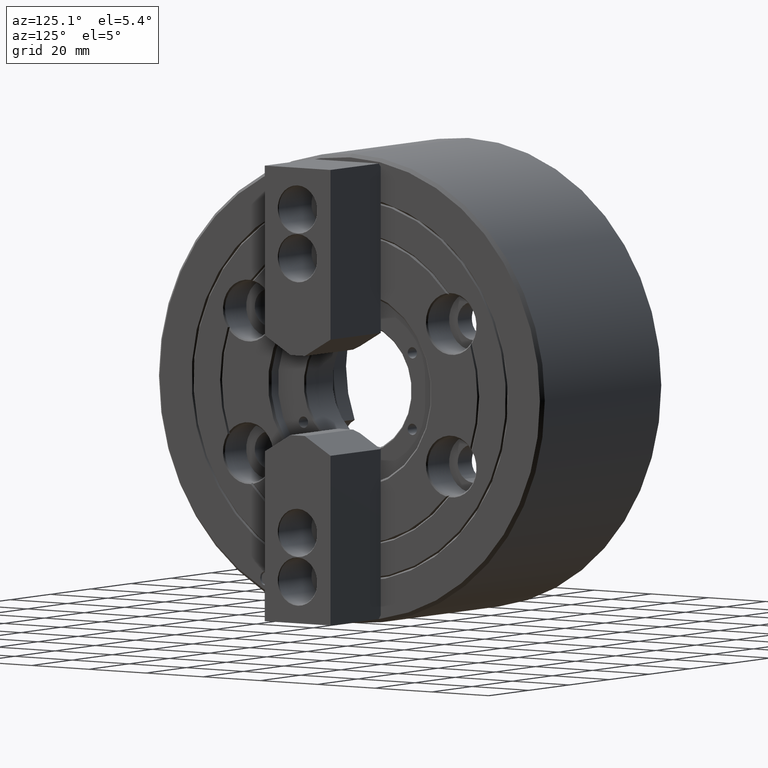
[diagram: clean part render]
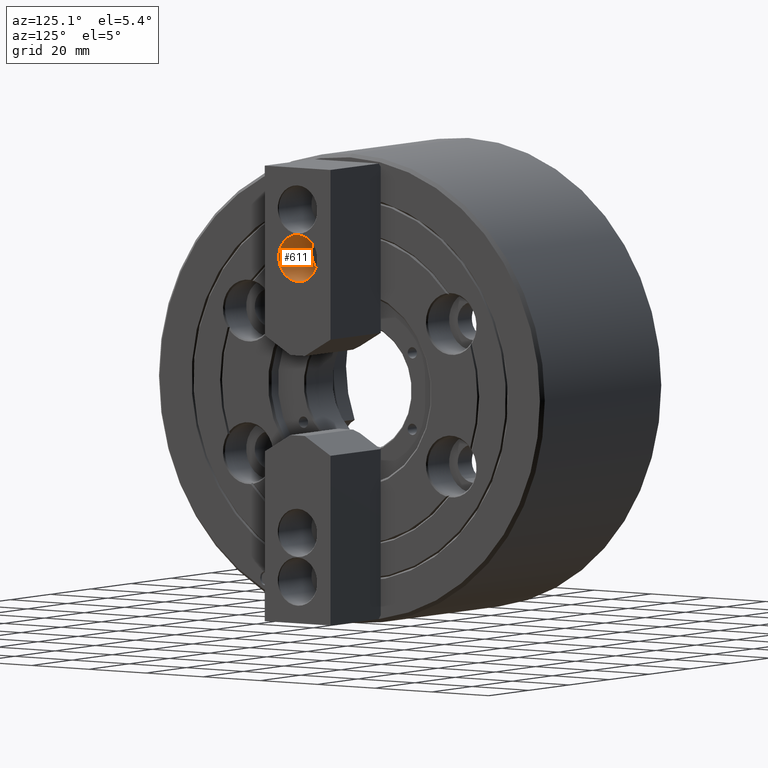
[diagram: same view with one face highlighted and labeled with its STEP entity id]
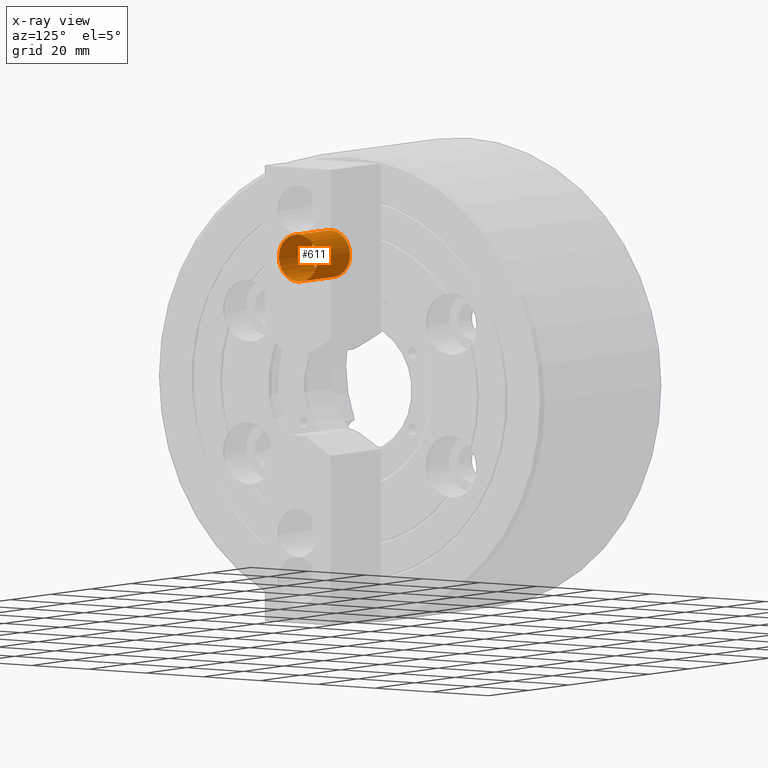
[diagram: x-ray of the same camera — body ghosted, the highlighted face saturated]
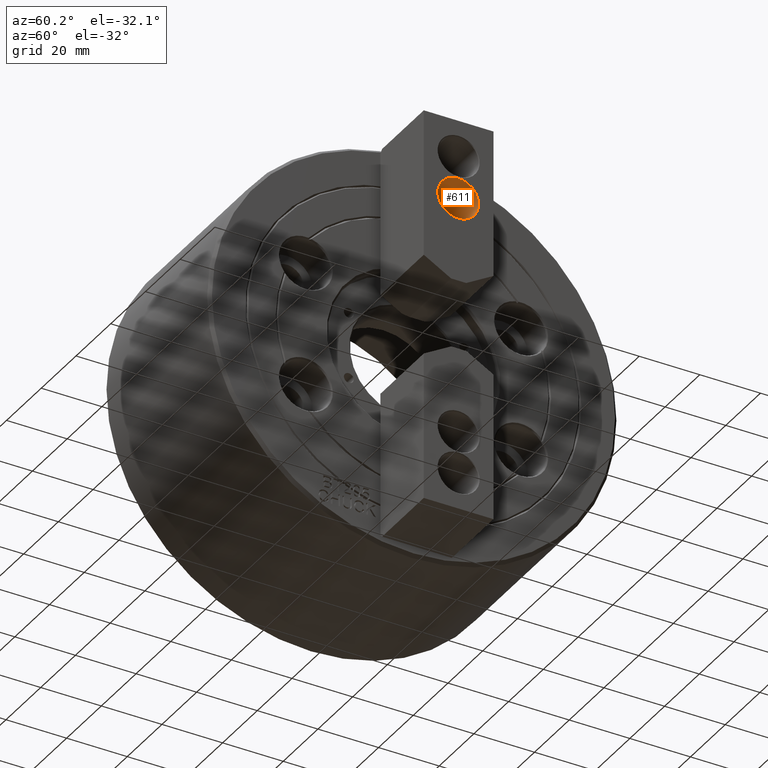
[diagram: same view with one face highlighted and labeled with its STEP entity id]
A machine part, auxiliary view. The second image highlights one B-rep face of the part: STEP entity #611.
The next image is the same camera in x-ray: the body ghosted, the highlighted face saturated — about 0% of this face is hidden behind the body in this view.
A second angle (auxiliary view) of the same face is appended — the face is thin or edge-on in the first view.
In plain terms, the highlighted cylindrical surface (bore or boss wall) has radius 6.75 mm, axis along (1, -0, -0).
Its self-contained STEP definition (entity closure, byte-faithful):
#611 = ADVANCED_FACE( '', ( #1283, #1284 ), #1285, .F. );
#1283 = FACE_OUTER_BOUND( '', #1974, .T. );
#1284 = FACE_OUTER_BOUND( '', #1975, .T. );
#1285 = CYLINDRICAL_SURFACE( '', #1976, 6.75000000000000 );
#1974 = EDGE_LOOP( '', ( #3927 ) );
#1975 = EDGE_LOOP( '', ( #3928 ) );
#1976 = AXIS2_PLACEMENT_3D( '', #3929, #3930, #3931 );
#3927 = ORIENTED_EDGE( '', *, *, #4564, .T. );
#3928 = ORIENTED_EDGE( '', *, *, #4073, .F. );
#3929 = CARTESIAN_POINT( '', ( 56.0014536930733, 0.000000000000000, 39.5000000000000 ) );
#3930 = DIRECTION( '', ( 1.00000000000000, -0.000000000000000, -0.000000000000000 ) );
#3931 = DIRECTION( '', ( 0.000000000000000, 0.000000000000000, -1.00000000000000 ) );
#4073 = EDGE_CURVE( '', #4767, #4767, #4768, .T. );
#4564 = EDGE_CURVE( '', #5485, #5485, #5486, .T. );
#4767 = VERTEX_POINT( '', #5837 );
#4768 = CIRCLE( '', #5838, 6.75000000000000 );
#5485 = VERTEX_POINT( '', #7521 );
#5486 = CIRCLE( '', #7522, 6.75000000000000 );
#5837 = CARTESIAN_POINT( '', ( 39.5014536930733, 0.000000000000000, 32.7500000000000 ) );
#5838 = AXIS2_PLACEMENT_3D( '', #7740, #7741, #7742 );
#7521 = CARTESIAN_POINT( '', ( 55.8014536930733, 0.000000000000000, 32.7500000000000 ) );
#7522 = AXIS2_PLACEMENT_3D( '', #8109, #8110, #8111 );
#7740 = CARTESIAN_POINT( '', ( 39.5014536930733, 0.000000000000000, 39.5000000000000 ) );
#7741 = DIRECTION( '', ( 1.00000000000000, 0.000000000000000, 0.000000000000000 ) );
#7742 = DIRECTION( '', ( 0.000000000000000, 0.000000000000000, -1.00000000000000 ) );
#8109 = CARTESIAN_POINT( '', ( 55.8014536930733, 0.000000000000000, 39.5000000000000 ) );
#8110 = DIRECTION( '', ( 1.00000000000000, 0.000000000000000, 0.000000000000000 ) );
#8111 = DIRECTION( '', ( 0.000000000000000, 0.000000000000000, -1.00000000000000 ) );